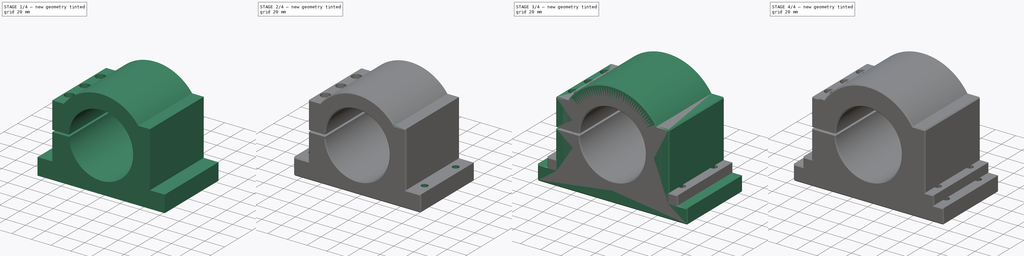
[diagram: build sequence overview — one tinted view per stage of 4, left to right]
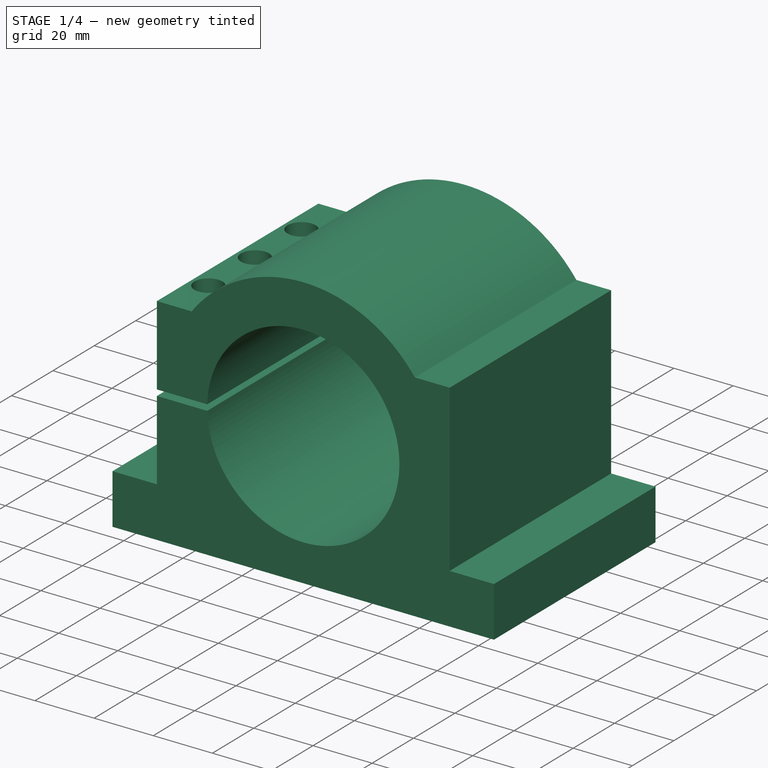
[diagram: stage 1 of 4 — iso view after this stage's code; geometry added in this stage tinted green]
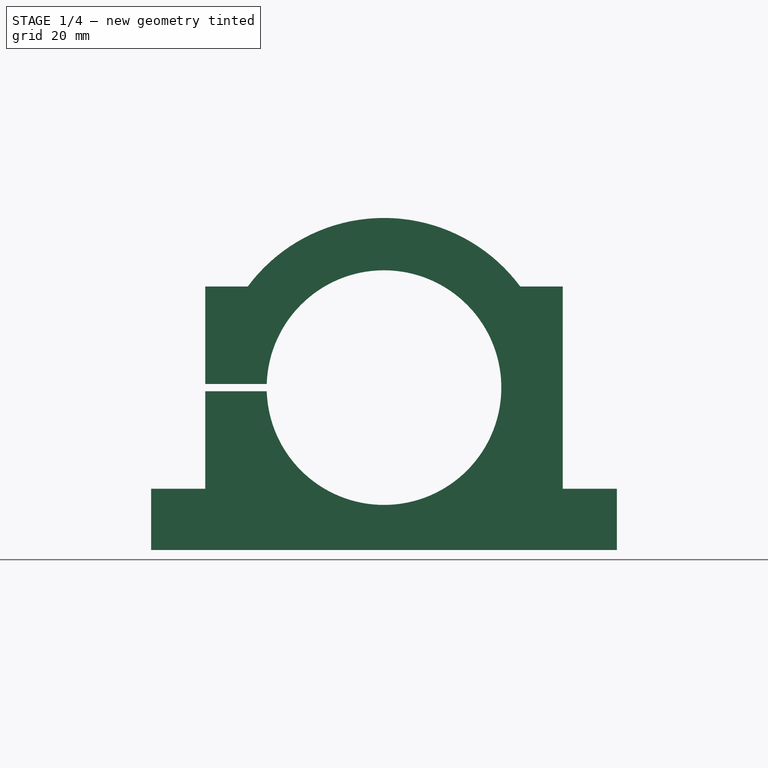
[diagram: stage 1 of 4 — front view after this stage's code; geometry added in this stage tinted green]
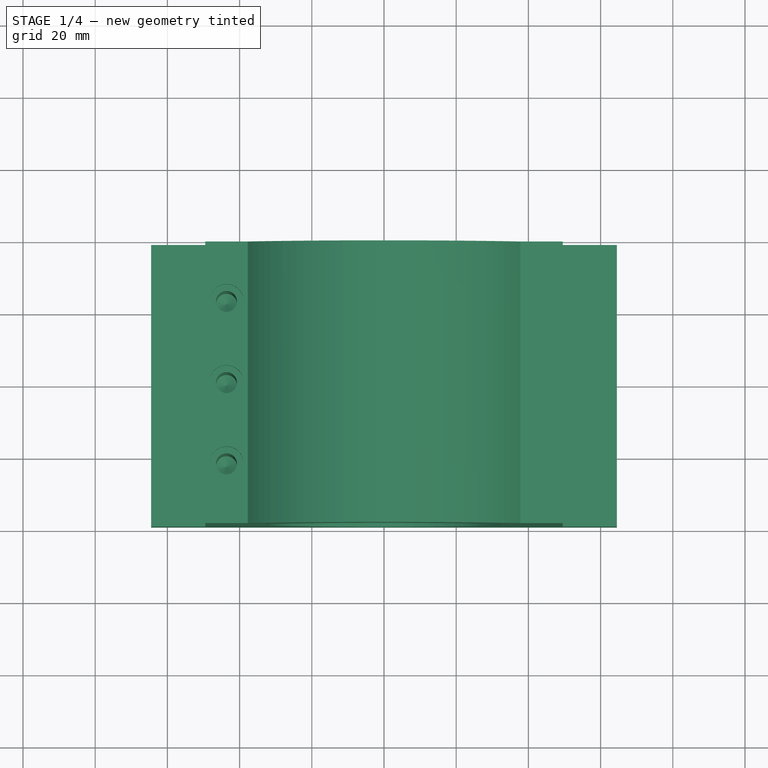
[diagram: stage 1 of 4 — top view after this stage's code; geometry added in this stage tinted green]
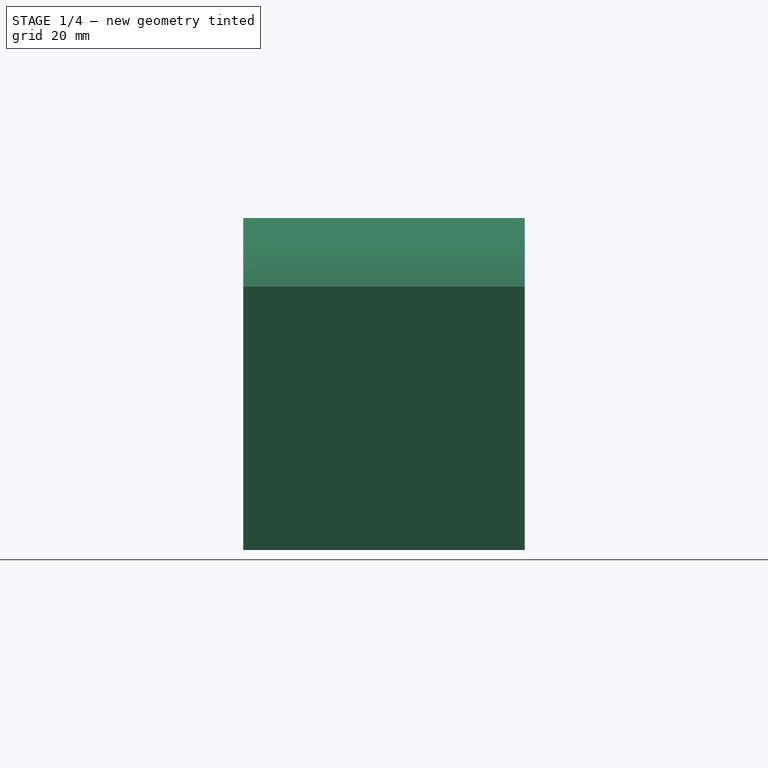
[diagram: stage 1 of 4 — right view after this stage's code; geometry added in this stage tinted green]
FCSTD DOCUMENT  (FreeCAD 2021.614R24301 +3747 (Git))
Label: SpindleBracket
License: Creative Commons Attribution
LicenseURL: http://creativecommons.org/licenses/by/4.0/
objects: Sketcher::SketchObject×6, PartDesign::Pad×2, PartDesign::Hole×2, PartDesign::Chamfer×2, PartDesign::Pocket×2, PartDesign::Mirrored×2, PartDesign::Body×2
note: 38 computed .brp shape members not serialized (recipe doc carries the construction recipe); baked Part::Feature solids carry a one-line shape summary decoded from their .brp

FEATURE [Sketcher::SketchObject] Sketch
  FullyConstrained = true
  MapMode = 5
  Placement = pos=(0,0,0) rot=(1,0,0;1.5708rad)
  Support = -> [XZ_Plane]
  sketch-geometry (18):
    g0: ArcOfCircle CenterX=0 CenterY=0 CenterZ=0 NormalX=0 NormalY=0 NormalZ=1 AngleXU=0 Radius=32.5 StartAngle=3.17237 EndAngle=9.394
    g1: LineSegment StartX=-49.5 StartY=28 StartZ=0 EndX=-37.7492 EndY=28 EndZ=0
    g2: LineSegment StartX=49.5 StartY=28 StartZ=0 EndX=49.5 EndY=-28 EndZ=0
    g3: LineSegment StartX=-49.5 StartY=-28 StartZ=0 EndX=-49.5 EndY=-1 EndZ=0
    g4: LineSegment StartX=-64.5 StartY=-45 StartZ=0 EndX=64.5 EndY=-45 EndZ=0
    g5: LineSegment StartX=64.5 StartY=-45 StartZ=0 EndX=64.5 EndY=-28 EndZ=0
    g6: LineSegment StartX=64.5 StartY=-28 StartZ=0 EndX=49.5 EndY=-28 EndZ=0
    g7: LineSegment StartX=-64.5 StartY=-28 StartZ=0 EndX=-64.5 EndY=-45 EndZ=0
    g8: LineSegment StartX=-49.5 StartY=-28 StartZ=0 EndX=-64.5 EndY=-28 EndZ=0
    g9: LineSegment StartX=-49.5 StartY=1 StartZ=0 EndX=-32.4846 EndY=1 EndZ=0
    g10: LineSegment StartX=-32.4846 StartY=-1 StartZ=0 EndX=-49.5 EndY=-1 EndZ=0
    g11: GeomPoint [constr] X=0 Y=47 Z=0
    g12: LineSegment StartX=-49.5 StartY=1 StartZ=0 EndX=-49.5 EndY=28 EndZ=0
    g13: LineSegment [constr] StartX=-49.5 StartY=-1 StartZ=0 EndX=-49.5 EndY=1 EndZ=0
    g14: GeomPoint [constr] X=-49.5 Y=0 Z=0
    g15: ArcOfCircle CenterX=0 CenterY=0 CenterZ=0 NormalX=0 NormalY=0 NormalZ=1 AngleXU=0 Radius=47 StartAngle=0.638193 EndAngle=2.5034
    g16: LineSegment StartX=37.7492 StartY=28 StartZ=0 EndX=49.5 EndY=28 EndZ=0
    g17: GeomPoint [constr] X=0 Y=-45 Z=0
  constraints (45):
    c: Coincident(g0,g-1)
    c: Coincident(g16,g2)
    c: Coincident(g12,g1)
    c: Horizontal(g1)
    c: Vertical(g2)
    c: Vertical(g3)
    c: Coincident(g4,g5)
    c: Coincident(g5,g6)
    c: Coincident(g8,g7)
    c: Coincident(g7,g4)
    c: Horizontal(g4)
    c: Horizontal(g6)
    c: Vertical(g5)
    c: Vertical(g7)
    c: Diameter(g0) = 65
    c: Symmetric(g1,g2,g0)
    c: DistanceX(g1,g16) = 99
    c: DistanceY(g2,g2) = 56
    c: PointOnObject(g3,g6)
    c: Coincident(g6,g2)
    c: Tangent(g6,g8)
    c: PointOnObject(g8,g3)
    c: Horizontal(g9)
    c: Horizontal(g10)
    c: PointOnObject(g11,g-2)
    c: DistanceY(g4,g11) = 92
    c: DistanceY(g5,g5) = 17
    c: DistanceX(g4,g4) = 129
    c: Coincident(g3,g10)
    c: Coincident(g12,g9)
    c: Tangent(g3,g12)
    c: Coincident(g0,g10)
    c: Coincident(g0,g9)
    c: Coincident(g13,g3)
    c: Coincident(g13,g9)
    c: PointOnObject(g14,g-1)
    c: Symmetric(g9,g3,g14)
    c: DistanceY(g13,g13) = 2
    c: Tangent(g1,g16)
    c: Coincident(g15,g16)
    c: Coincident(g15,g1)
    c: PointOnObject(g11,g15)
    c: Coincident(g15,g0)
    c: PointOnObject(g17,g-2)
    c: Symmetric(g4,g4,g17)
FEATURE [PartDesign::Pad] Pad
  ClaimChildren = false
  Direction = (1,1,1)
  Fit = 0
  FitJoin = 0
  InnerFit = 0
  InnerFitJoin = 0
  InnerTaperAngle = 0
  InnerTaperAngleRev = 0
  Length = 78
  Length2 = 100
  Linearize = true
  Midplane = true
  NewSolid = false
  Placement = pos=(0,0,0) rot=(1,0,0;1.5708rad)
  Profile = -> Sketch
  Refine = true
  Suppress = false
  Type = 0
FEATURE [Sketcher::SketchObject] Sketch001
  ExternalGeometry = -> [Pad]
  FullyConstrained = true
  MapMode = 5
  Placement = pos=(0,1.87e-14,28) rot=(0,0,1;3.14159rad)
  Support = -> [Pad]
  sketch-geometry (5):
    g0: Circle CenterX=43.6246 CenterY=0 CenterZ=0 NormalX=0 NormalY=0 NormalZ=1 AngleXU=0 Radius=4.75
    g1: Circle CenterX=43.6246 CenterY=22.5 CenterZ=0 NormalX=0 NormalY=0 NormalZ=1 AngleXU=0 Radius=4.75
    g2: Circle CenterX=43.6246 CenterY=-22.5 CenterZ=0 NormalX=0 NormalY=0 NormalZ=1 AngleXU=0 Radius=4.75
    g3: GeomPoint [constr] X=37.7492 Y=0 Z=0
    g4: GeomPoint [constr] X=49.5 Y=0 Z=0
  constraints (11):
    c: PointOnObject(g0,g-1)
    c: Equal(g2,g0)
    c: Equal(g0,g1)
    c: Symmetric(g1,g2,g0)
    c: PointOnObject(g3,g-3)
    c: PointOnObject(g4,g-4)
    c: Horizontal(g4,g3)
    c: Symmetric(g4,g3,g0)
    c: Vertical(g1,g0)
    c: Diameter(g1) = 9.5
    c: DistanceY(g2,g1) = 45
FEATURE [PartDesign::Hole] Hole
  BaseFeature = -> Pad
  ClaimChildren = false
  CustomThreadClearance = 0
  Depth = 50
  DepthType = 0
  Diameter = 5.8
  DrillForDepth = false
  DrillPoint = 1
  DrillPointAngle = 118
  Fit = 0
  FitJoin = 0
  HoleCutCountersinkAngle = 90
  HoleCutCustomValues = false
  HoleCutDepth = 5.4
  HoleCutDiameter = 9.5
  HoleCutType = 1
  InnerFit = 0
  InnerFitJoin = 0
  ModelThread = false
  NewSolid = false
  Placement = pos=(0,0,0) rot=(1,0,0;1.5708rad)
  Profile = -> Sketch001
  Refine = true
  Suppress = false
  Tapered = false
  TaperedAngle = 90
  ThreadClass = 0
  ThreadDepth = 20
  ThreadDepthType = 1
  ThreadDirection = 0
  ThreadFit = 2
  ThreadSize = 13
  ThreadType = 1
  Threaded = false
  UseCustomThreadClearance = false
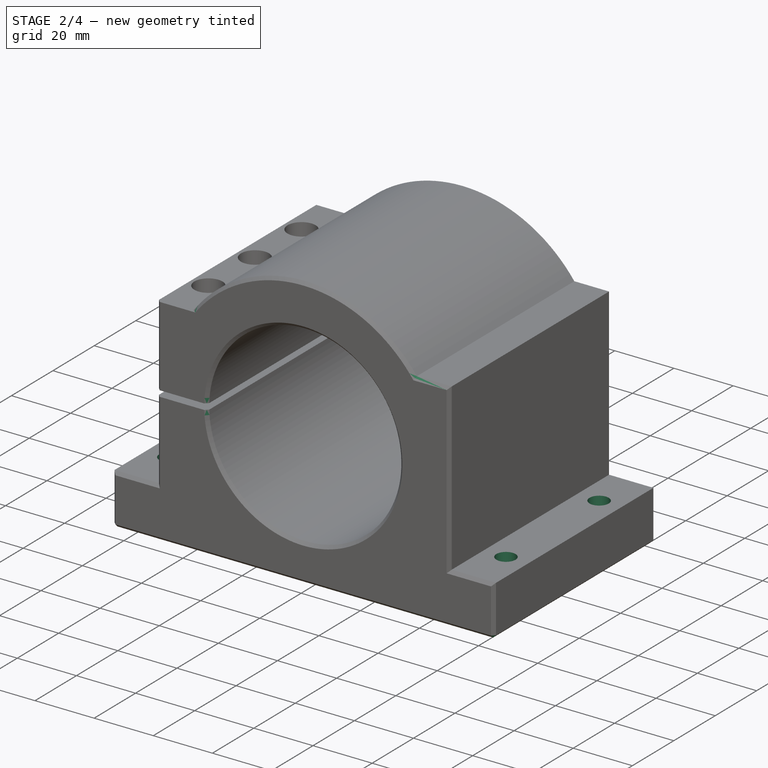
[diagram: stage 2 of 4 — iso view after this stage's code; geometry added in this stage tinted green]
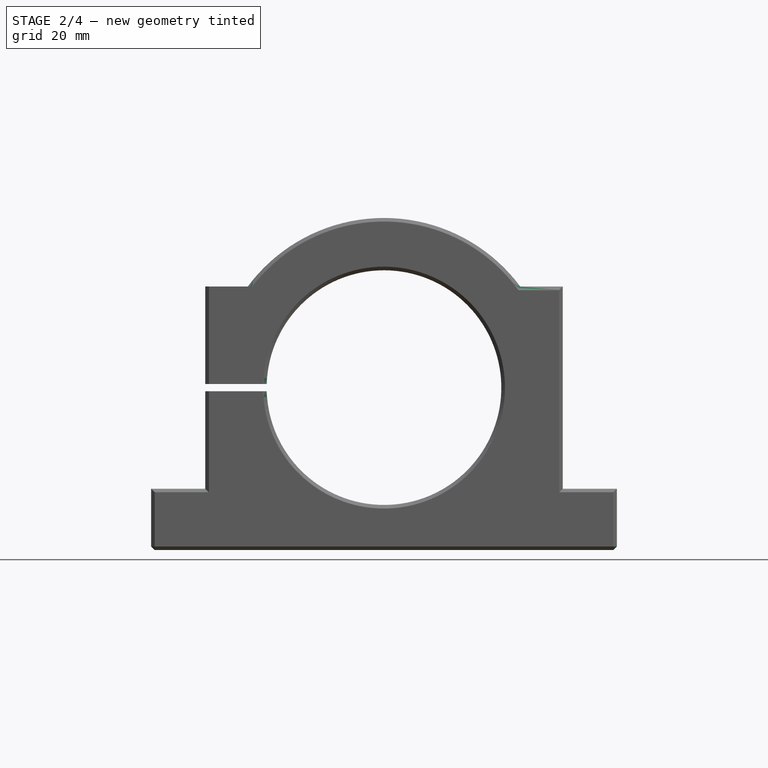
[diagram: stage 2 of 4 — front view after this stage's code; geometry added in this stage tinted green]
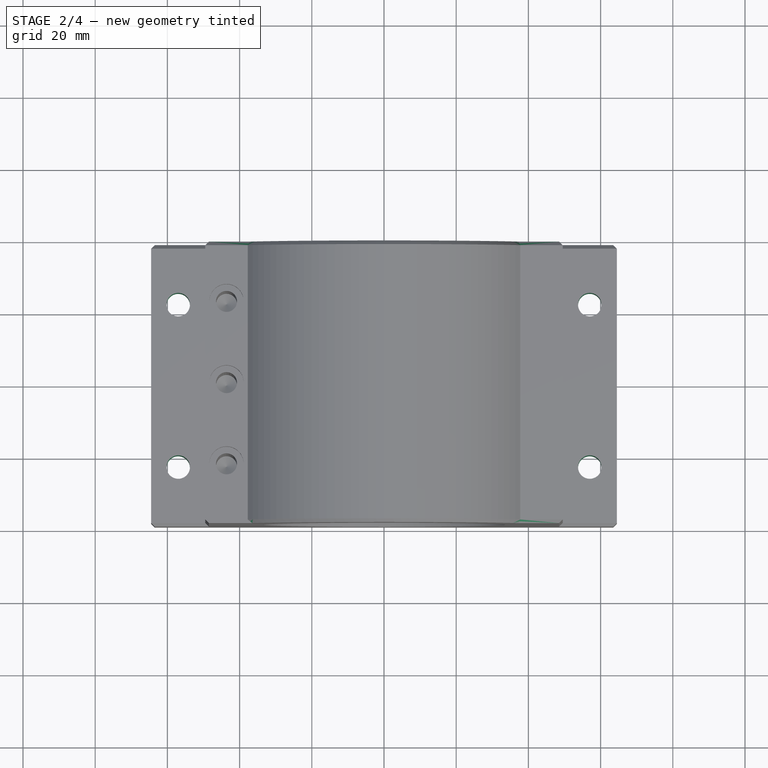
[diagram: stage 2 of 4 — top view after this stage's code; geometry added in this stage tinted green]
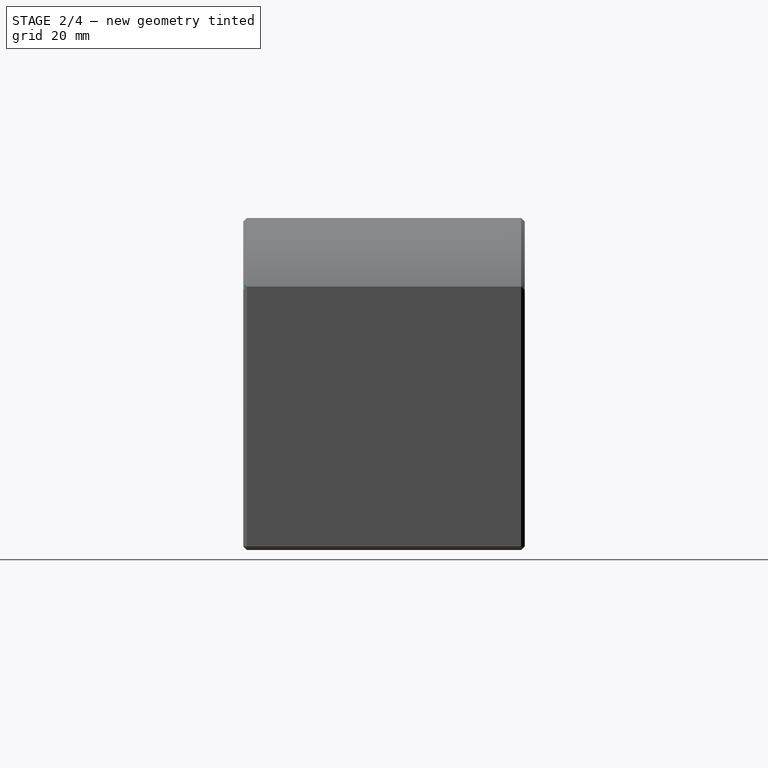
[diagram: stage 2 of 4 — right view after this stage's code; geometry added in this stage tinted green]
FEATURE [PartDesign::Chamfer] Chamfer
  Angle = 45
  Base = -> Hole [Edge14,Edge25,Edge29,Edge30,Edge31,Edge32,Edge33,Edge35,Edge7,Edge4,Edge27,Edge34,Edge18,Edge17,Edge16,Edge3,Edge6,Edge24,Edge23,Edge22,Edge21,Edge20,Edge19,Edge36,Edge57]
  BaseFeature = -> Hole
  ChamferType = 0
  FlipDirection = false
  NewSolid = false
  Placement = pos=(0,0,0) rot=(1,0,0;1.5708rad)
  Refine = true
  Size = 1
  Size2 = 1
  SupportTransform = false
  Suppress = false
FEATURE [PartDesign::Body] Body001  label="80mm"
  AutoGroupSolids = false
  ExportMode = 0
  Group = -> [Sketch002,Pad001,Sketch003,Hole001,Chamfer001,Sketch004,Pocket,Mirrored]
  Origin = -> Origin001
  Placement = pos=(0,84,7) rot=(0,0,1;0rad)
  Tip = -> Mirrored
  _ExportChildren = -> [Pad001,Hole001,Chamfer001,Pocket,Mirrored]
  _GroupVersion = 1
FEATURE [Sketcher::SketchObject] Sketch005
  FullyConstrained = true
  MapMode = 5
  Placement = pos=(0,-3.11e-14,-28) rot=(0,0,1;3.14159rad)
  Support = -> [Chamfer]
  sketch-geometry (3):
    g0: Circle CenterX=-57 CenterY=22.5 CenterZ=0 NormalX=0 NormalY=0 NormalZ=1 AngleXU=0 Radius=3.25
    g1: Circle CenterX=-57 CenterY=-22.5 CenterZ=0 NormalX=0 NormalY=0 NormalZ=1 AngleXU=0 Radius=3.25
    g2: GeomPoint [constr] X=-57 Y=0 Z=0
  constraints (7):
    c: PointOnObject(g2,g-1)
    c: Vertical(g0,g1)
    c: Symmetric(g0,g1,g2)
    c: Equal(g0,g1)
    c: Diameter(g0) = 6.5
    c: DistanceX(g0,g-1) = 57
    c: DistanceY(g1,g0) = 45
FEATURE [PartDesign::Pocket] Pocket001
  BaseFeature = -> Chamfer
  ClaimChildren = false
  Fit = 0
  FitJoin = 0
  InnerFit = 0
  InnerFitJoin = 0
  InnerTaperAngle = 0
  InnerTaperAngleRev = 0
  Length = 5
  Length2 = 100
  Linearize = true
  NewSolid = false
  Placement = pos=(0,0,0) rot=(1,0,0;1.5708rad)
  Profile = -> Sketch005
  Refine = true
  Suppress = false
  Type = 1
FEATURE [PartDesign::Mirrored] Mirrored001
  BaseFeature = -> Pocket001
  CopyShape = false
  MirrorPlane = -> YZ_Plane
  NewSolid = false
  OriginalSubs = -> [Pocket001]
  Originals = -> [Pocket001]
  ParallelTransform = true
  Placement = pos=(0,0,0) rot=(1,0,0;1.5708rad)
  Refine = true
  SubTransform = true
  Suppress = false
  _Version = 1
FEATURE [PartDesign::Body] Body  label="65mm"
  AutoGroupSolids = false
  ExportMode = 0
  Group = -> [Sketch,Pad,Sketch001,Hole,Chamfer,Sketch005,Pocket001,Mirrored001]
  Origin = -> Origin
  Tip = -> Mirrored001
  _ExportChildren = -> [Pad,Hole,Chamfer,Pocket001,Mirrored001]
  _GroupVersion = 1
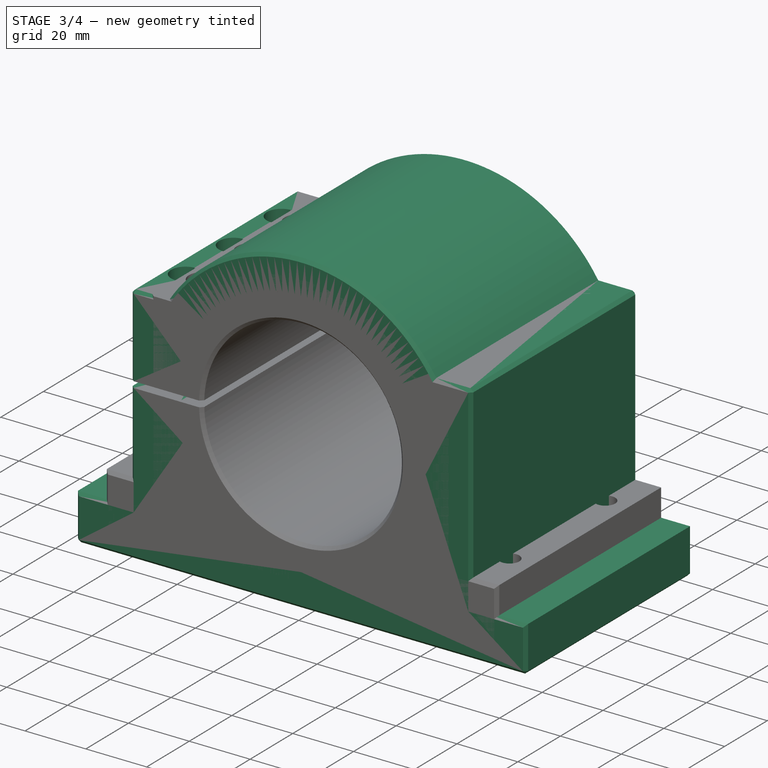
[diagram: stage 3 of 4 — iso view after this stage's code; geometry added in this stage tinted green]
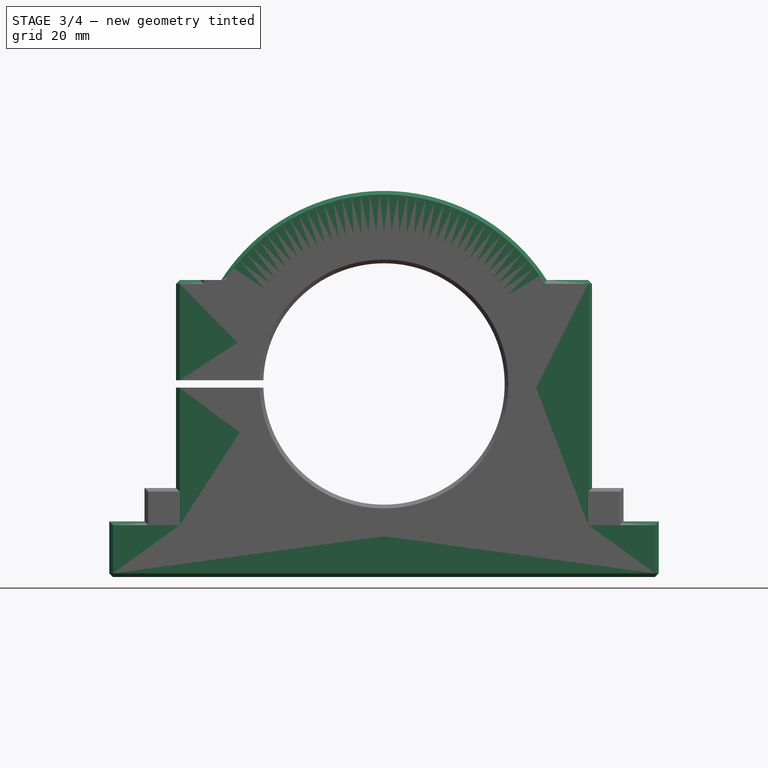
[diagram: stage 3 of 4 — front view after this stage's code; geometry added in this stage tinted green]
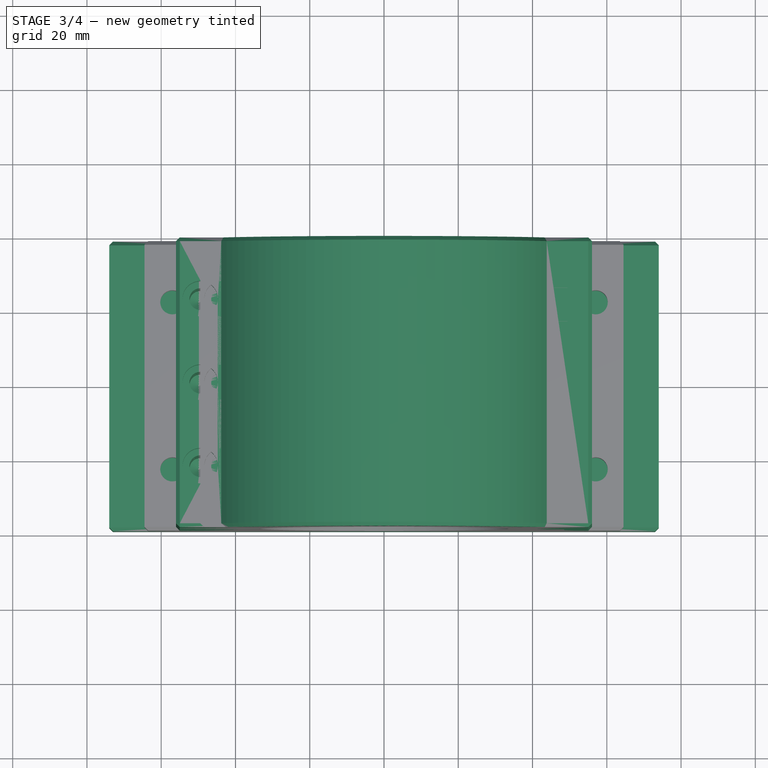
[diagram: stage 3 of 4 — top view after this stage's code; geometry added in this stage tinted green]
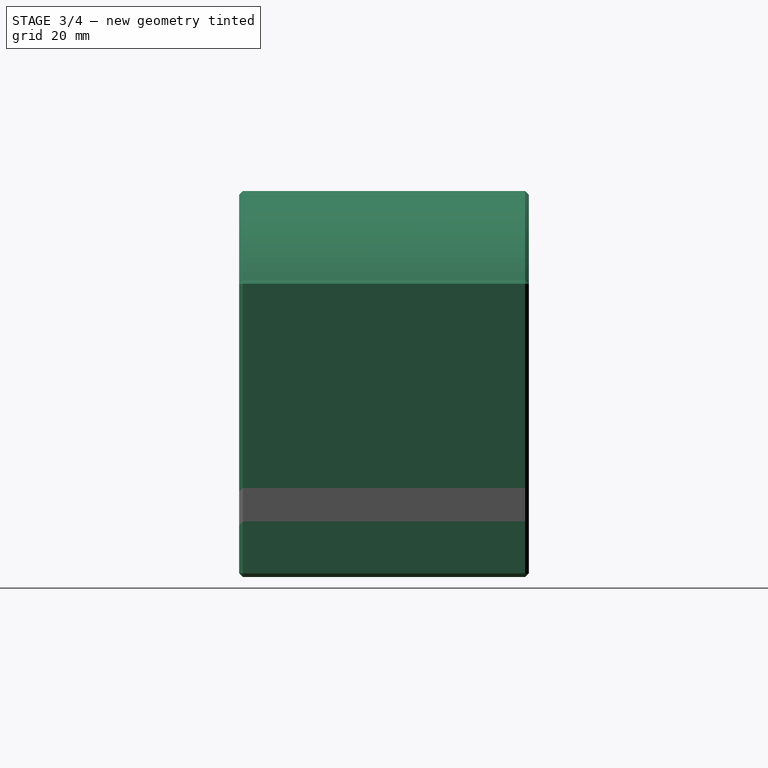
[diagram: stage 3 of 4 — right view after this stage's code; geometry added in this stage tinted green]
FEATURE [Sketcher::SketchObject] Sketch002
  FullyConstrained = true
  MapMode = 5
  Placement = pos=(0,0,0) rot=(1,0,0;1.5708rad)
  Support = -> [XZ_Plane001]
  sketch-geometry (18):
    g0: ArcOfCircle CenterX=0 CenterY=0 CenterZ=0 NormalX=0 NormalY=0 NormalZ=1 AngleXU=0 Radius=40 StartAngle=3.1666 EndAngle=9.39978
    g1: LineSegment StartX=-56 StartY=28 StartZ=0 EndX=-43.8178 EndY=28 EndZ=0
    g2: LineSegment StartX=56 StartY=28 StartZ=0 EndX=56 EndY=-37 EndZ=0
    g3: LineSegment StartX=-56 StartY=-37 StartZ=0 EndX=-56 EndY=-1 EndZ=0
    g4: LineSegment StartX=-74 StartY=-52 StartZ=0 EndX=74 EndY=-52 EndZ=0
    g5: LineSegment StartX=74 StartY=-52 StartZ=0 EndX=74 EndY=-37 EndZ=0
    g6: LineSegment StartX=74 StartY=-37 StartZ=0 EndX=56 EndY=-37 EndZ=0
    g7: LineSegment StartX=-74 StartY=-37 StartZ=0 EndX=-74 EndY=-52 EndZ=0
    g8: LineSegment StartX=-56 StartY=-37 StartZ=0 EndX=-74 EndY=-37 EndZ=0
    g9: LineSegment StartX=-56 StartY=1 StartZ=0 EndX=-39.9875 EndY=1 EndZ=0
    g10: LineSegment StartX=-39.9875 StartY=-1 StartZ=0 EndX=-56 EndY=-1 EndZ=0
    g11: GeomPoint [constr] X=0 Y=52 Z=0
    g12: LineSegment StartX=-56 StartY=1 StartZ=0 EndX=-56 EndY=28 EndZ=0
    g13: LineSegment [constr] StartX=-56 StartY=-1 StartZ=0 EndX=-56 EndY=1 EndZ=0
    g14: GeomPoint [constr] X=-56 Y=0 Z=0
    g15: ArcOfCircle CenterX=0 CenterY=0 CenterZ=0 NormalX=0 NormalY=0 NormalZ=1 AngleXU=0 Radius=52 StartAngle=0.56861 EndAngle=2.57298
    g16: LineSegment StartX=43.8178 StartY=28 StartZ=0 EndX=56 EndY=28 EndZ=0
    g17: GeomPoint [constr] X=0 Y=-52 Z=0
  constraints (45):
    c: Coincident(g0,g-1)
    c: Coincident(g16,g2)
    c: Coincident(g12,g1)
    c: Horizontal(g1)
    c: Vertical(g2)
    c: Vertical(g3)
    c: Coincident(g4,g5)
    c: Coincident(g5,g6)
    c: Coincident(g8,g7)
    c: Coincident(g7,g4)
    c: Horizontal(g4)
    c: Horizontal(g6)
    c: Vertical(g5)
    c: Vertical(g7)
    c: Diameter(g0) = 80
    c: DistanceY(g2,g2) = 65
    c: PointOnObject(g3,g6)
    c: Coincident(g6,g2)
    c: Tangent(g6,g8)
    c: PointOnObject(g8,g3)
    c: Horizontal(g9)
    c: Horizontal(g10)
    c: PointOnObject(g11,g-2)
    c: DistanceY(g4,g11) = 104
    c: DistanceY(g5,g5) = 15
    c: DistanceX(g4,g4) = 148
    c: Coincident(g3,g10)
    c: Coincident(g12,g9)
    c: Tangent(g3,g12)
    c: Coincident(g0,g10)
    c: Coincident(g0,g9)
    c: Coincident(g13,g3)
    c: Coincident(g13,g9)
    c: PointOnObject(g14,g-1)
    c: Symmetric(g9,g3,g14)
    c: DistanceY(g13,g13) = 2
    c: Tangent(g1,g16)
    c: Coincident(g15,g16)
    c: Coincident(g15,g1)
    c: PointOnObject(g11,g15)
    c: Coincident(g15,g0)
    c: Symmetric(g4,g4,g17)
    c: DistanceX(g8,g8) = 18
    c: Symmetric(g11,g17,g0)
    c: Equal(g16,g1)
FEATURE [PartDesign::Pad] Pad001
  ClaimChildren = false
  Direction = (1,1,1)
  Fit = 0
  FitJoin = 0
  InnerFit = 0
  InnerFitJoin = 0
  InnerTaperAngle = 0
  InnerTaperAngleRev = 0
  Length = 78
  Length2 = 100
  Linearize = true
  Midplane = true
  NewSolid = false
  Placement = pos=(0,0,0) rot=(1,0,0;1.5708rad)
  Profile = -> Sketch002
  Refine = true
  Suppress = false
  Type = 0
FEATURE [Sketcher::SketchObject] Sketch003
  ExternalGeometry = -> [Pad001]
  FullyConstrained = true
  MapMode = 5
  Placement = pos=(0,1.87e-14,28) rot=(0,0,1;3.14159rad)
  Support = -> [Pad001]
  sketch-geometry (3):
    g0: Circle CenterX=49.5 CenterY=22.5 CenterZ=0 NormalX=0 NormalY=0 NormalZ=1 AngleXU=0 Radius=4.75
    g1: Circle CenterX=49.5 CenterY=0 CenterZ=0 NormalX=0 NormalY=0 NormalZ=1 AngleXU=0 Radius=4.75
    g2: Circle CenterX=49.5 CenterY=-22.5 CenterZ=0 NormalX=0 NormalY=0 NormalZ=1 AngleXU=0 Radius=4.75
  constraints (8):
    c: PointOnObject(g1,g-1)
    c: Vertical(g0,g1)
    c: Symmetric(g0,g2,g1)
    c: Equal(g0,g1)
    c: Equal(g1,g2)
    c: Diameter(g0) = 9.5
    c: DistanceY(g2,g0) = 45
    c: DistanceX(g1,g-3) = 6.5
FEATURE [PartDesign::Hole] Hole001
  BaseFeature = -> Pad001
  ClaimChildren = false
  CustomThreadClearance = 0
  Depth = 50
  DepthType = 0
  Diameter = 5.8
  DrillForDepth = false
  DrillPoint = 1
  DrillPointAngle = 118
  Fit = 0
  FitJoin = 0
  HoleCutCountersinkAngle = 90
  HoleCutCustomValues = false
  HoleCutDepth = 7
  HoleCutDiameter = 9.5
  HoleCutType = 1
  InnerFit = 0
  InnerFitJoin = 0
  ModelThread = false
  NewSolid = false
  Placement = pos=(0,0,0) rot=(1,0,0;1.5708rad)
  Profile = -> Sketch003
  Refine = true
  Suppress = false
  Tapered = false
  TaperedAngle = 90
  ThreadClass = 0
  ThreadDepth = 50
  ThreadDepthType = 0
  ThreadDirection = 0
  ThreadFit = 2
  ThreadSize = 13
  ThreadType = 1
  Threaded = false
  UseCustomThreadClearance = false
FEATURE [PartDesign::Chamfer] Chamfer001
  Angle = 45
  Base = -> Hole001 [Edge14,Edge18,Edge17,Edge48,Edge19,Edge54,Edge16,Edge3,Edge6,Edge24,Edge23,Edge22,Edge21,Edge20,Edge25,Edge29,Edge28,Edge30,Edge31,Edge32,Edge33,Edge34,Edge35,Edge7,Edge4,Edge27,Edge36,Edge57]
  BaseFeature = -> Hole001
  ChamferType = 0
  FlipDirection = false
  NewSolid = false
  Placement = pos=(0,0,0) rot=(1,0,0;1.5708rad)
  Refine = true
  Size = 1
  Size2 = 1
  SupportTransform = false
  Suppress = false
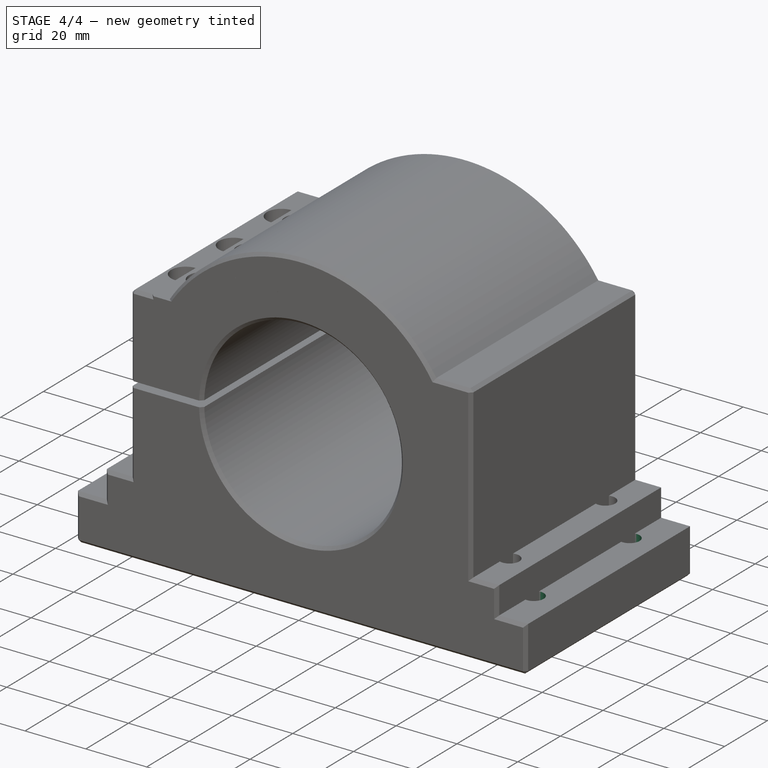
[diagram: stage 4 of 4 — iso view after this stage's code; geometry added in this stage tinted green]
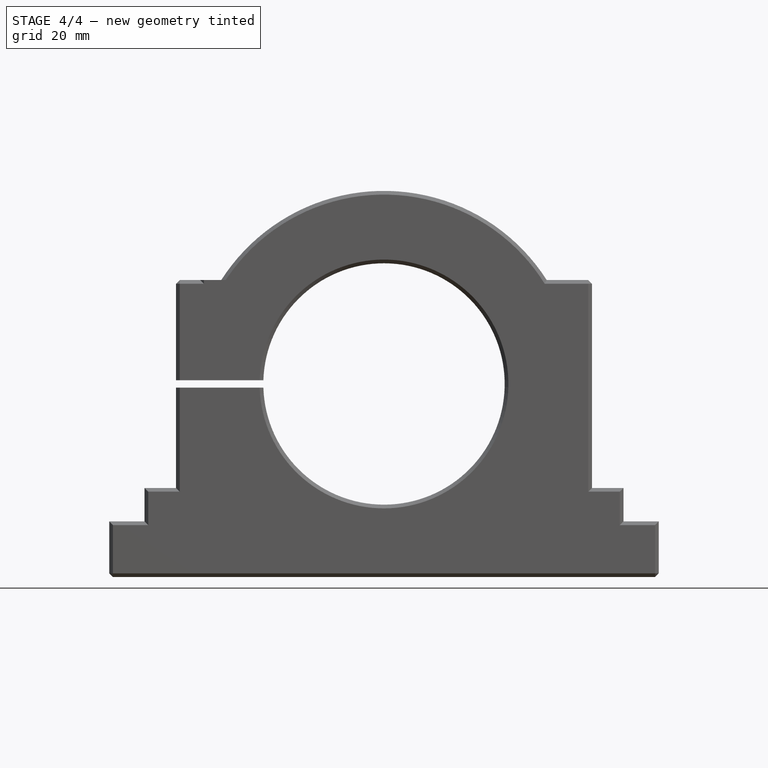
[diagram: stage 4 of 4 — front view after this stage's code; geometry added in this stage tinted green]
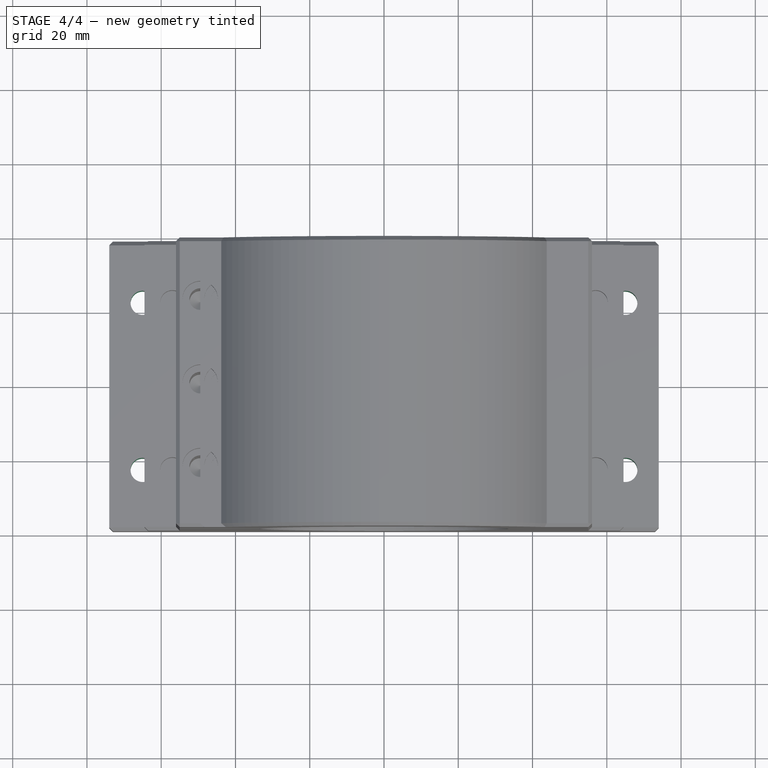
[diagram: stage 4 of 4 — top view after this stage's code; geometry added in this stage tinted green]
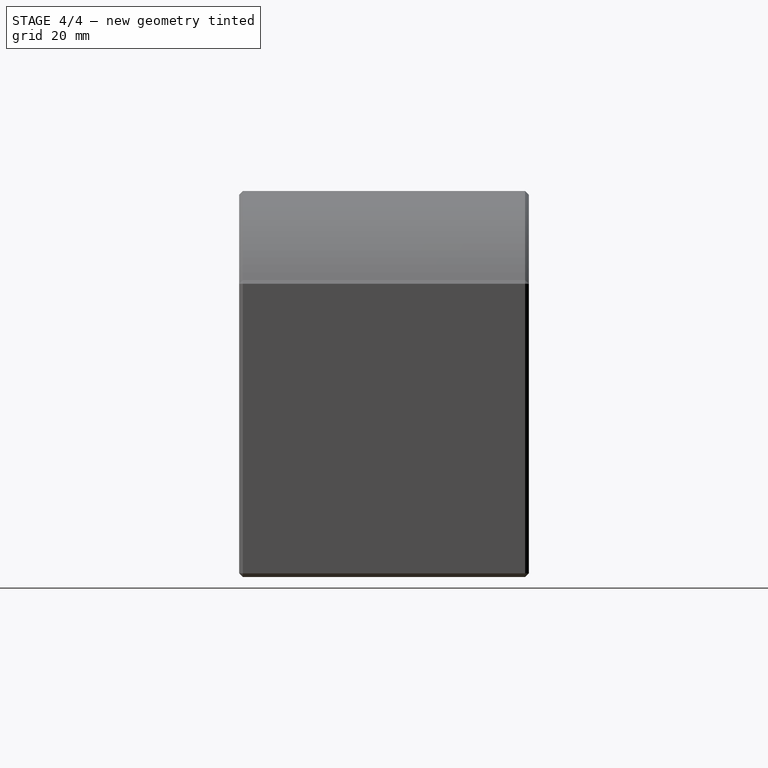
[diagram: stage 4 of 4 — right view after this stage's code; geometry added in this stage tinted green]
FEATURE [Sketcher::SketchObject] Sketch004
  ExternalGeometry = -> [Chamfer001]
  FullyConstrained = true
  MapMode = 5
  Placement = pos=(0,-4.11e-14,-37) rot=(0,0,1;3.14159rad)
  Support = -> [Chamfer001]
  sketch-geometry (3):
    g0: Circle CenterX=-65 CenterY=22.5 CenterZ=0 NormalX=0 NormalY=0 NormalZ=1 AngleXU=0 Radius=3.25
    g1: Circle CenterX=-65 CenterY=-22.5 CenterZ=0 NormalX=0 NormalY=0 NormalZ=1 AngleXU=0 Radius=3.25
    g2: GeomPoint [constr] X=-65 Y=0 Z=0
  constraints (7):
    c: Equal(g1,g0)
    c: Diameter(g0) = 6.5
    c: DistanceY(g1,g0) = 45
    c: DistanceX(g0,g-1) = 65
    c: PointOnObject(g2,g-1)
    c: Vertical(g0,g1)
    c: Symmetric(g0,g1,g2)
FEATURE [PartDesign::Pocket] Pocket
  BaseFeature = -> Chamfer001
  ClaimChildren = false
  Fit = 0
  FitJoin = 0
  InnerFit = 0
  InnerFitJoin = 0
  InnerTaperAngle = 0
  InnerTaperAngleRev = 0
  Length = 5
  Length2 = 100
  Linearize = true
  NewSolid = false
  Placement = pos=(0,0,0) rot=(1,0,0;1.5708rad)
  Profile = -> Sketch004
  Refine = true
  Suppress = false
  Type = 1
FEATURE [PartDesign::Mirrored] Mirrored
  BaseFeature = -> Pocket
  CopyShape = false
  MirrorPlane = -> YZ_Plane001
  NewSolid = false
  OriginalSubs = -> [Pocket]
  Originals = -> [Pocket]
  ParallelTransform = true
  Placement = pos=(0,0,0) rot=(1,0,0;1.5708rad)
  Refine = true
  SubTransform = true
  Suppress = false
  _Version = 1
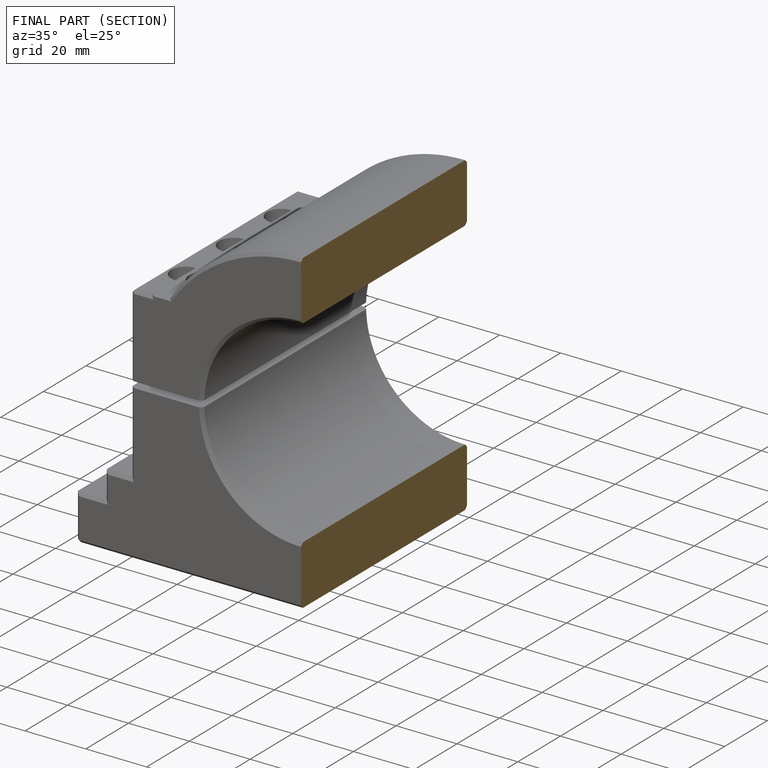
[diagram: finished part — half-section view (interior)]
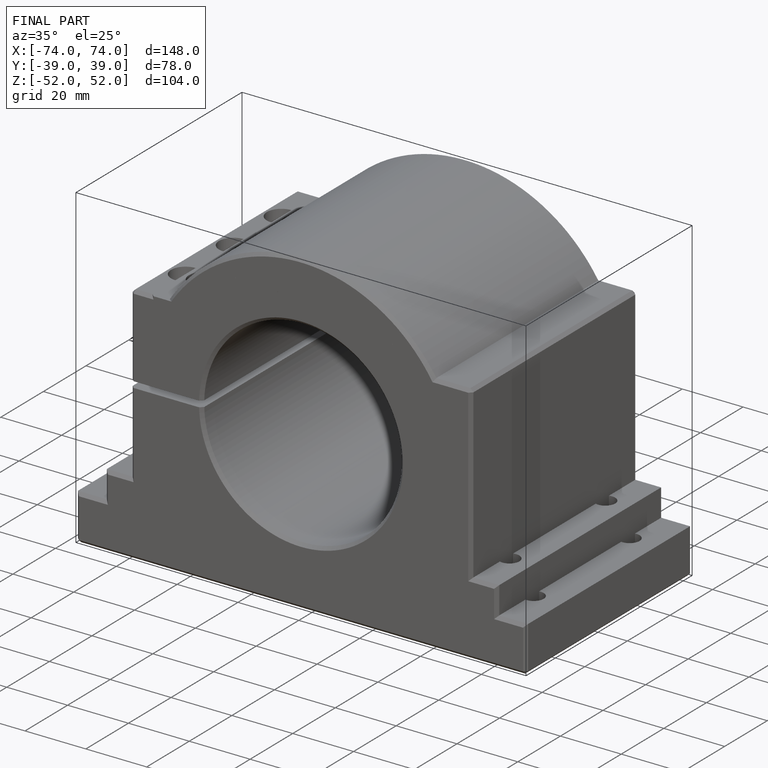
[diagram: finished part — iso view with bounding-box wireframe]
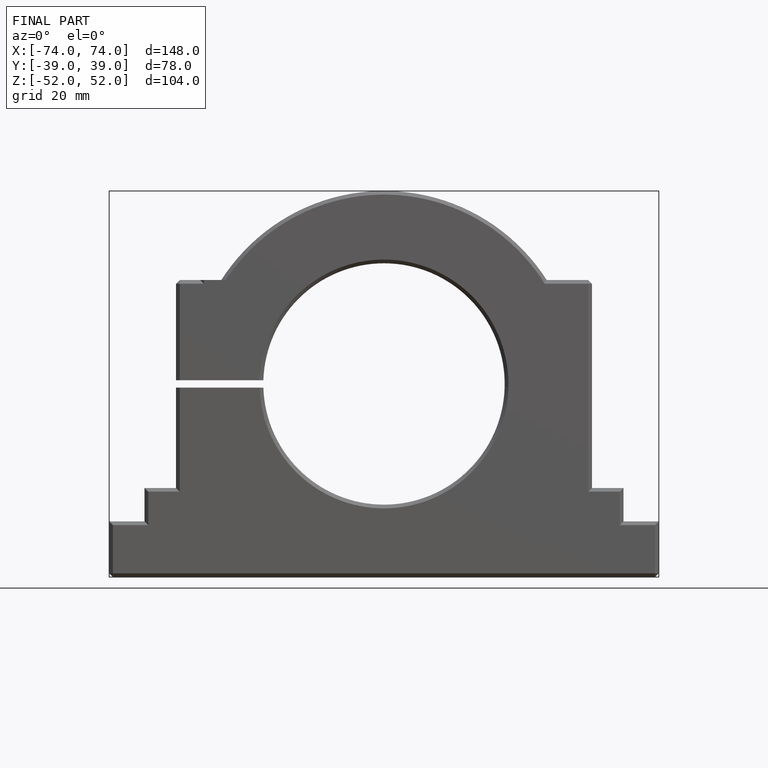
[diagram: finished part — front view with bounding-box wireframe]
